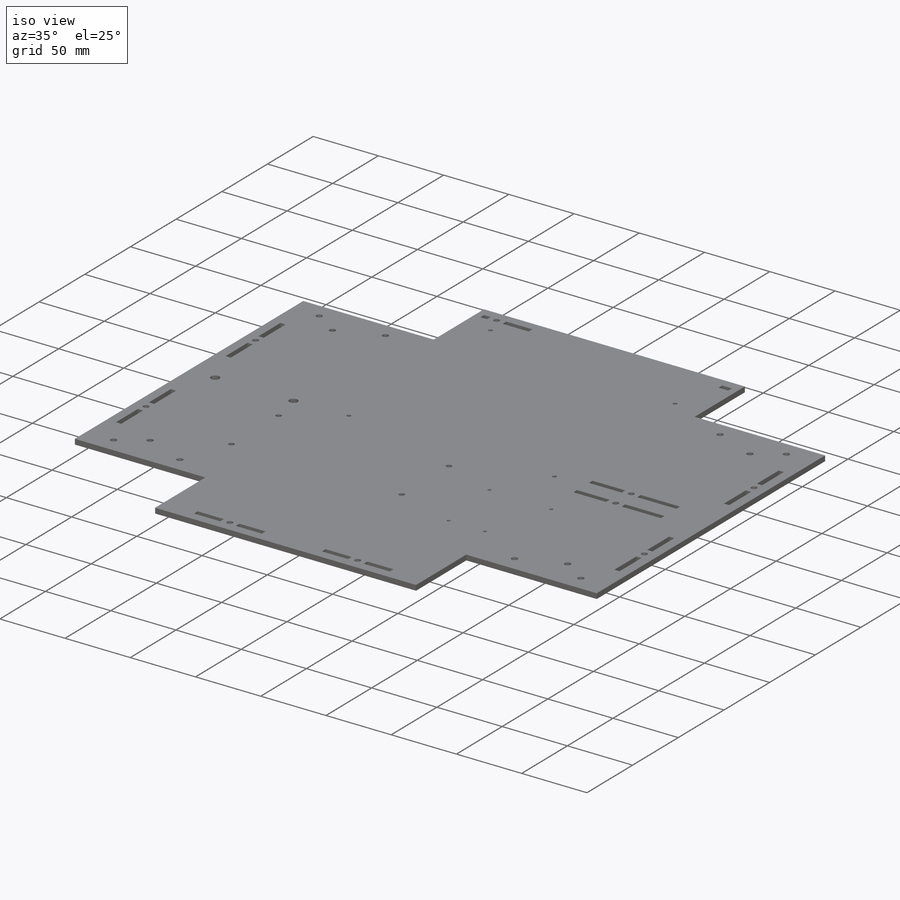
[diagram: iso view]
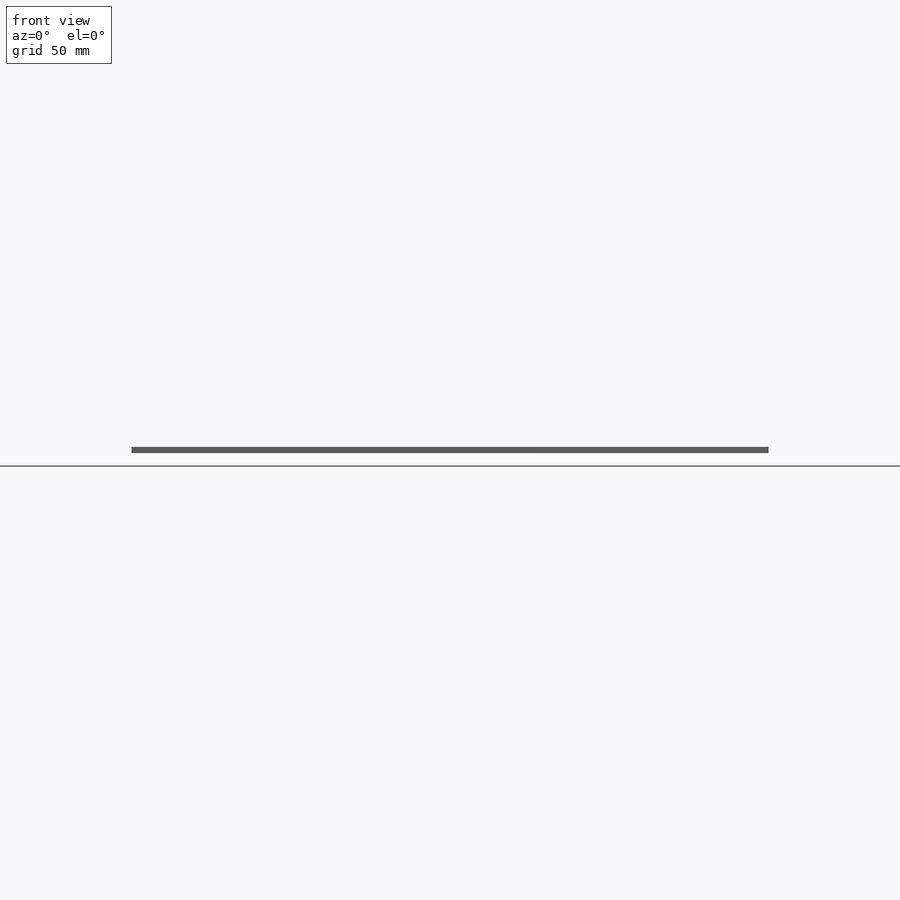
[diagram: front view]
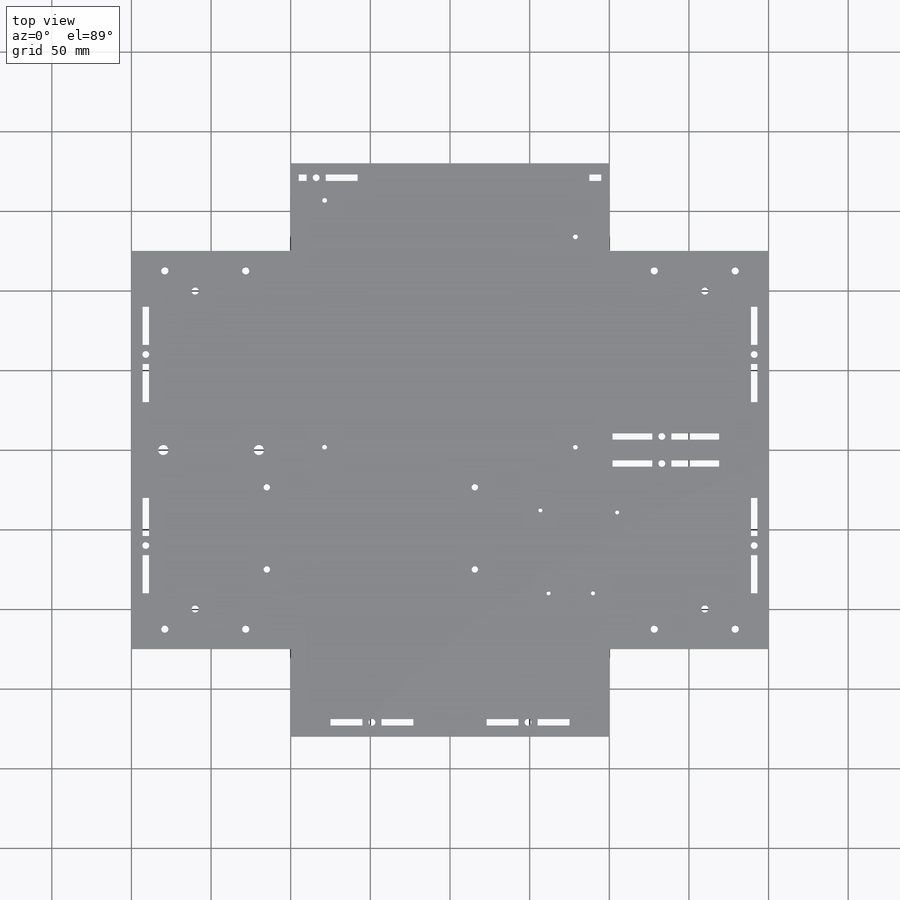
[diagram: top view]
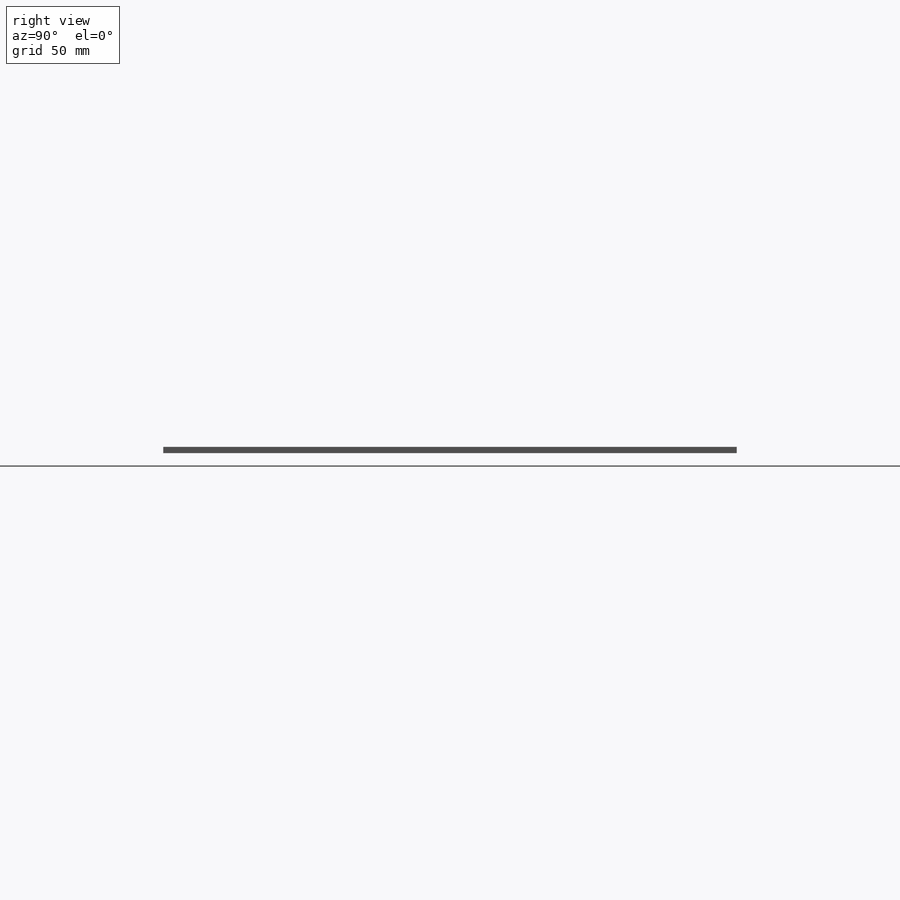
[diagram: right view]
SOLIDWORKS PART (.sldprt)
format: sldprt  version: not decoded by parser v0  size: 731,648 bytes
history: native  units: mm
features: sketch x13, cut_extrude x7, mirror x2, hole x2, material x1, extrude x1 (+11 scaffold rows collapsed)
feature tree (37):
  scaffold x11  (default folders/planes/origin — collapsed)
  material  "Material <not specified>"
  sketch  "Sketch1"  dims[D1=400.0mm D2=360.0mm]
  extrude  "Boss-Extrude1"  Depth=4mm
  sketch  "Sketch2"  dims[D1=100.0mm D2=55.0mm]
  cut_extrude  "Corner"  [1 undecoded]
  sketch  "Sketch3"  dims[c1.D2=4.5mm c1.D3=4.5mm c1.D6=4.5mm c1.D1=120.0mm c2.D2=4.4mm c2.D3=25.4mm c2.D4=50.8mm c2.D5=19.05mm c2.D7=6.35mm c2.D8=5.0mm c3.D7=12.7mm c3.D8=5.5mm c4.D7=12.5mm c4.D8=12.7mm]
  cut_extrude  "Motor mounting"  [1 undecoded]
  mirror  "Mirror1"
  sketch  "Sketch4"  dims[c1.D1=5.0mm c1.D2=12.7mm c1.D3=110.0mm c1.D4=9.5mm c1.D5=9.5mm c1.D6=2.0mm c1.D7=2.0mm c2.D3=145.0mm c2.D8=60.0mm c2.D9=12.7mm c3.D9=90.0deg c3.D3=35.0mm]
  mirror  "Mirror2"
  sketch  "Sketch5"  dims[D5=3.0mm D6=3.0mm D7=3.0mm D8=3.0mm D1=132.08mm D2=157.48mm D3=22.86mm D4=23.27mm]
  cut_extrude  "PC mounting"  [1 undecoded]
  sketch  "Sketch6"  dims[c1.D3=2.5mm c1.D8=2.5mm c1.D9=2.5mm c1.D10=~2.271036mm c1.D1=2.5mm c1.D2=2.5mm c2.D3=2.5mm c2.D4=2.5mm c2.D5=2.5mm c2.D6=2.5mm c2.D2=2.5mm c2.D1=68.6mm c3.D2=53.3mm c3.D4=50.8mm c3.D5=14.0mm c3.D6=1.3mm c3.D7=2.5mm c3.D8=5.1mm c3.D9=27.9mm c3.D10=15.2mm c3.D11=30.0mm c3.D12=40.0mm c4.D4=7.6mm c4.D6=27.9mm c4.D10=1.3mm c4.D11=2.6mm c4.D12=2.5mm c4.D13=20.0mm c4.D14=50.0mm c5.D6=15.2mm c5.D13=40.0mm c5.D14=30.0mm c5.D1=27.9mm c5.D2=50.8mm c5.D3=1.3mm c5.D4=5.1mm c5.D5=15.2mm c6.D6=2.5mm c6.D3=1.3mm c6.D2=50.8mm c6.D7=90.0deg c7.D7=50.8mm c7.D8=1.3mm c7.D9=48.2mm c7.D10=5.1mm c7.D11=15.2mm c7.D2=50.8mm c8.D2=~106.805029deg c9.D2=50.8mm c10.D2=~163.194971deg c11.D2=50.8mm c12.D2=90.0deg c12.D3=5.0mm c13.D2=35.0mm]
  cut_extrude  "Arduino mounting"  [1 undecoded]
  sketch  "Sketch7"  dims[c1.D1=2.0mm c1.D2=48.0mm c1.D3=48.0mm c1.D4=2.0mm c1.D5=27.0mm c1.D6=30.0mm c2.D1=48.0mm c2.D2=2.0mm c2.D5=30.0mm c2.D6=40.0mm c2.D7=30.0mm c3.D2=25.0mm c3.D3=35.0mm c3.D4=130.6mm c3.D5=51.6mm c3.D6=105.0mm c3.D7=15.0mm c4.D4=2.0 c4.D2=2.0 c4.D3=2.0]
  cut_extrude  "DCDC-USB mounting"  [1 undecoded]
  sketch  "Sketch10"  dims[c1.D25=4.0mm c1.D1=11.0mm c1.D2=9.0mm c1.D3=9.0mm c1.D4=9.0mm c2.D2=11.0mm c2.D3=11.0mm c2.D4=11.0mm c2.D5=4.0mm c2.D6=4.0mm c2.D7=4.0mm c2.D8=4.0mm c2.D9=35.0mm c2.D10=60.0mm c2.D11=60.0mm c2.D12=35.0mm c2.D13=12.0mm c2.D14=24.0mm c2.D15=12.0mm c2.D16=24.0mm c2.D17=20.0mm c2.D18=20.0mm c2.D19=12.0mm c2.D20=20.0mm c2.D21=20.0mm c2.D22=12.0mm c2.D23=25.0mm c2.D24=25.0mm c2.D25=7.52mm c2.D26=158.75mm c2.D27=5.0mm c2.D28=5.0mm c2.D29=5.0mm c2.D30=12.0mm c2.D31=20.0mm]
  cut_extrude  "Sides mounting"  [1 undecoded]
  sketch  "Sketch11"  dims[D1=4.0mm D2=12.0mm D3=30.0mm D4=25.0mm D5=20.0mm D6=8.5mm]
  cut_extrude  "fin mounting"  [1 undecoded]
  hole  "M4 Clearance Hole1"  Diameter=4.3mm Depth=6mm
  sketch  "Sketch13"
  sketch  "Sketch12"  dims[hole-wizard template sketch: 50 standard entries collapsed; hole parameters above]
  hole  "M6 Clearance Hole1"  Diameter=6.4mm Depth=6mm
  sketch  "Sketch15"  dims[D1=20.0mm D2=60.0mm]
  sketch  "Sketch14"  dims[hole-wizard template sketch: 47 standard entries collapsed; hole parameters kept: c15.Hole Depth=6.0mm c15.D3=~14.816244mm c15.Drill Angle=118.0deg]
decode coverage: 15 of 25 modeling features carry decoded parameters
note: ~ marks probable driven/reference dimensions
note: 7 parameter values undecoded
summary: no parameter record found for 7 features
note: suppression state not decoded; provenance and decode notes live in map.json
